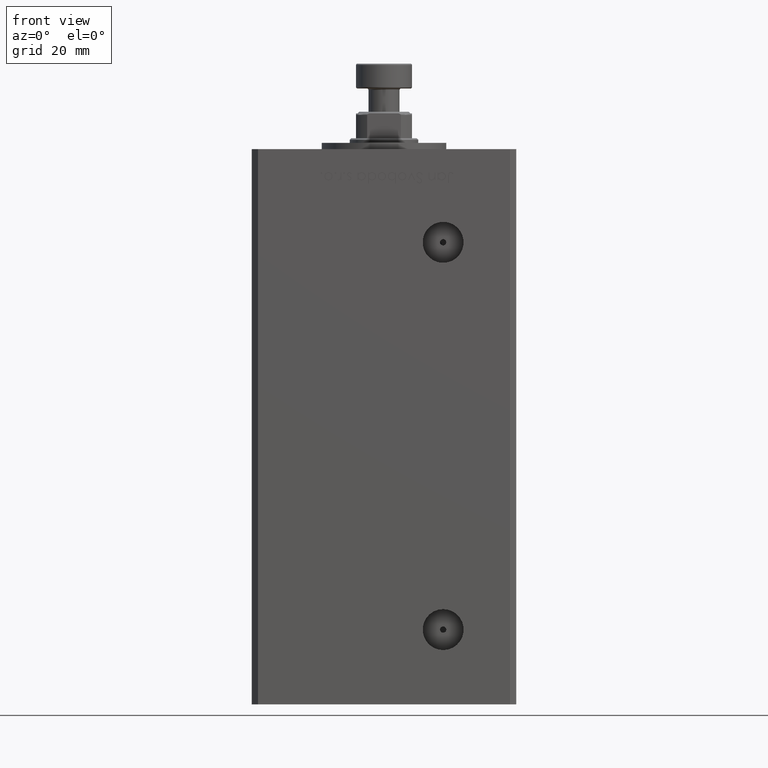
[diagram: clean part render]
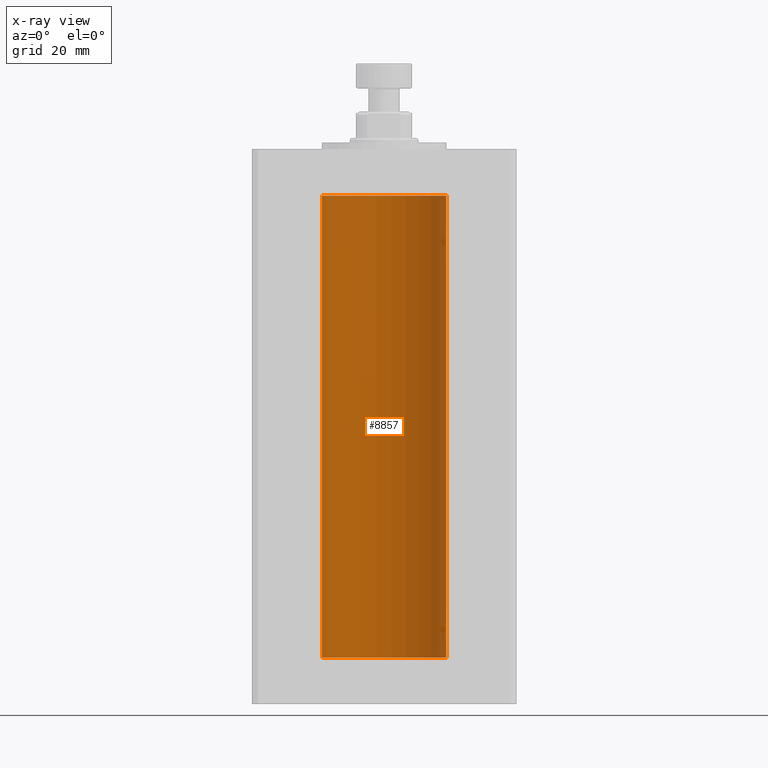
[diagram: x-ray — body ghosted, one internal face saturated and labeled with its STEP entity id]
A machine part, front view, then the same camera in x-ray: the body is ghosted and one INTERNAL B-rep face — a face not visible from any outside direction — is saturated and labeled: STEP entity #8857.
In plain terms, the highlighted cylindrical surface (partial cylindrical patch) has radius 20 mm, axis along (-0, -0, -1).
Its self-contained STEP definition (entity closure, byte-faithful):
#82 = DIRECTION ( 'NONE',  ( 1.000000000000000000, 0.000000000000000000, 0.000000000000000000 ) ) ;
#377 = LINE ( 'NONE', #4900, #37624 ) ;
#4097 = DIRECTION ( 'NONE',  ( -1.000000000000000000, 0.000000000000000000, 0.000000000000000000 ) ) ;
#4900 = CARTESIAN_POINT ( 'NONE',  ( -20.00000000000000000, 0.000000000000000000, 148.5000000000000000 ) ) ;
#5775 = ORIENTED_EDGE ( 'NONE', *, *, #34782, .F. ) ;
#8000 = CARTESIAN_POINT ( 'NONE',  ( 20.00000000000000000, 2.449293598294706513E-15, 148.5000000000000000 ) ) ;
#8353 = DIRECTION ( 'NONE',  ( -0.000000000000000000, -0.000000000000000000, -1.000000000000000000 ) ) ;
#8464 = CIRCLE ( 'NONE', #23780, 20.00000000000000000 ) ;
#8857 = ADVANCED_FACE ( 'NONE', ( #36064 ), #36599, .F. ) ;
#10946 = DIRECTION ( 'NONE',  ( 1.000000000000000000, 0.000000000000000000, 0.000000000000000000 ) ) ;
#11996 = CIRCLE ( 'NONE', #43507, 20.00000000000000000 ) ;
#13123 = DIRECTION ( 'NONE',  ( -0.000000000000000000, 0.000000000000000000, 1.000000000000000000 ) ) ;
#19204 = CARTESIAN_POINT ( 'NONE',  ( 0.000000000000000000, 0.000000000000000000, 0.000000000000000000 ) ) ;
#19550 = ORIENTED_EDGE ( 'NONE', *, *, #37666, .T. ) ;
#20324 = CARTESIAN_POINT ( 'NONE',  ( 0.000000000000000000, 0.000000000000000000, 148.5000000000000000 ) ) ;
#23780 = AXIS2_PLACEMENT_3D ( 'NONE', #19204, #31183, #10946 ) ;
#24240 = DIRECTION ( 'NONE',  ( -0.000000000000000000, -0.000000000000000000, -1.000000000000000000 ) ) ;
#24607 = CARTESIAN_POINT ( 'NONE',  ( -20.00000000000000000, 0.000000000000000000, 148.5000000000000000 ) ) ;
#25387 = ORIENTED_EDGE ( 'NONE', *, *, #32180, .F. ) ;
#25786 = CARTESIAN_POINT ( 'NONE',  ( -20.00000000000000000, 0.000000000000000000, 0.000000000000000000 ) ) ;
#28327 = CARTESIAN_POINT ( 'NONE',  ( 0.000000000000000000, 0.000000000000000000, 148.5000000000000000 ) ) ;
#30313 = CARTESIAN_POINT ( 'NONE',  ( 20.00000000000000000, 2.449293598294706513E-15, 0.000000000000000000 ) ) ;
#31183 = DIRECTION ( 'NONE',  ( -0.000000000000000000, 0.000000000000000000, 1.000000000000000000 ) ) ;
#32180 = EDGE_CURVE ( 'NONE', #44035, #32439, #8464, .T. ) ;
#32340 = VECTOR ( 'NONE', #24240, 1000.000000000000000 ) ;
#32439 = VERTEX_POINT ( 'NONE', #25786 ) ;
#33171 = CARTESIAN_POINT ( 'NONE',  ( 20.00000000000000000, 2.449293598294706513E-15, 148.5000000000000000 ) ) ;
#34782 = EDGE_CURVE ( 'NONE', #35104, #44035, #48520, .T. ) ;
#35104 = VERTEX_POINT ( 'NONE', #33171 ) ;
#36064 = FACE_OUTER_BOUND ( 'NONE', #38096, .T. ) ;
#36599 = CYLINDRICAL_SURFACE ( 'NONE', #40621, 20.00000000000000000 ) ;
#37624 = VECTOR ( 'NONE', #48362, 1000.000000000000000 ) ;
#37666 = EDGE_CURVE ( 'NONE', #35104, #40820, #11996, .T. ) ;
#38096 = EDGE_LOOP ( 'NONE', ( #5775, #19550, #49037, #25387 ) ) ;
#40621 = AXIS2_PLACEMENT_3D ( 'NONE', #28327, #8353, #4097 ) ;
#40820 = VERTEX_POINT ( 'NONE', #24607 ) ;
#40944 = EDGE_CURVE ( 'NONE', #40820, #32439, #377, .T. ) ;
#43507 = AXIS2_PLACEMENT_3D ( 'NONE', #20324, #13123, #82 ) ;
#44035 = VERTEX_POINT ( 'NONE', #30313 ) ;
#48362 = DIRECTION ( 'NONE',  ( -0.000000000000000000, -0.000000000000000000, -1.000000000000000000 ) ) ;
#48520 = LINE ( 'NONE', #8000, #32340 ) ;
#49037 = ORIENTED_EDGE ( 'NONE', *, *, #40944, .T. ) ;